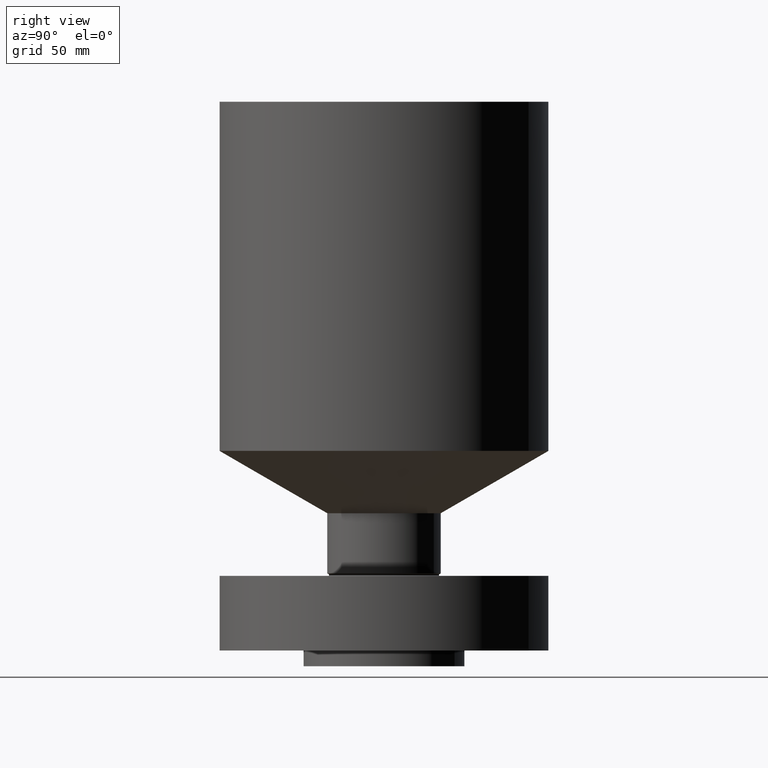
[diagram: clean part render]
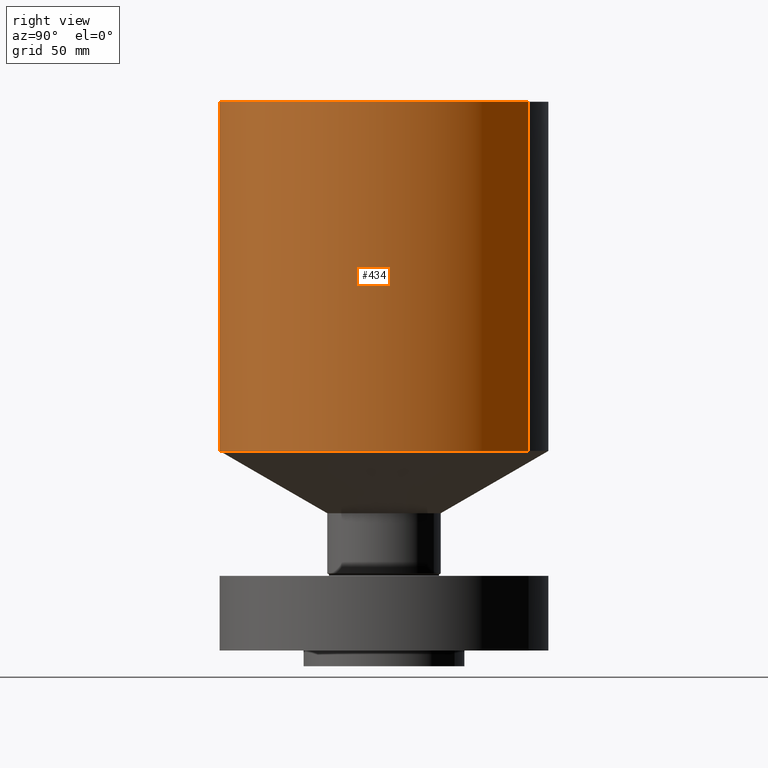
[diagram: same view with one face highlighted and labeled with its STEP entity id]
A machine part, right view. The second image highlights one B-rep face of the part: STEP entity #434.
In plain terms, the highlighted cylindrical surface (partial cylindrical patch) has radius 66.675 mm, axis along (0, 0, -1).
Its self-contained STEP definition (entity closure, byte-faithful):
#183=AXIS2_PLACEMENT_3D('Cylinder Axis2P3D',#180,#181,#182) ;
#380=AXIS2_PLACEMENT_3D('Circle Axis2P3D',#378,#379,$) ;
#418=AXIS2_PLACEMENT_3D('Circle Axis2P3D',#416,#417,$) ;
#180=CARTESIAN_POINT('Axis2P3D Location',(0.,0.,4.25000000002)) ;
#375=CARTESIAN_POINT('Vertex',(1.25849203884,2.30365422497,3.18304246302)) ;
#378=CARTESIAN_POINT('Axis2P3D Location',(0.,0.,3.18304246302)) ;
#382=CARTESIAN_POINT('Vertex',(-1.25849203884,-2.30365422497,3.18304246302)) ;
#409=CARTESIAN_POINT('Line Origine',(1.25849203884,2.30365422497,5.96652123153)) ;
#413=CARTESIAN_POINT('Vertex',(1.25849203884,2.30365422497,8.75000000004)) ;
#416=CARTESIAN_POINT('Axis2P3D Location',(0.,0.,8.75000000004)) ;
#420=CARTESIAN_POINT('Vertex',(-1.25849203884,-2.30365422497,8.75000000004)) ;
#423=CARTESIAN_POINT('Line Origine',(-1.25849203884,-2.30365422497,5.96652123153)) ;
#181=DIRECTION('Axis2P3D Direction',(0.,0.,-0.0393700787402)) ;
#182=DIRECTION('Axis2P3D XDirection',(-0.0188750212049,-0.0345504945626,0.)) ;
#379=DIRECTION('Axis2P3D Direction',(-0.,0.,0.0393700787402)) ;
#410=DIRECTION('Vector Direction',(0.,0.,-0.0393700787402)) ;
#417=DIRECTION('Axis2P3D Direction',(0.,0.,-0.0393700787402)) ;
#424=DIRECTION('Vector Direction',(0.,0.,-0.0393700787402)) ;
#411=VECTOR('Line Direction',#410,0.0393700787402) ;
#425=VECTOR('Line Direction',#424,0.0393700787402) ;
#429=ORIENTED_EDGE('',*,*,#384,.F.) ;
#430=ORIENTED_EDGE('',*,*,#415,.T.) ;
#431=ORIENTED_EDGE('',*,*,#422,.T.) ;
#432=ORIENTED_EDGE('',*,*,#427,.F.) ;
#434=ADVANCED_FACE('PartBody',(#433),#184,.T.) ;
#381=CIRCLE('generated circle',#380,2.62500000001) ;
#419=CIRCLE('generated circle',#418,2.62500000001) ;
#184=CYLINDRICAL_SURFACE('generated cylinder',#183,2.62500000001) ;
#384=EDGE_CURVE('',#376,#383,#381,.F.) ;
#415=EDGE_CURVE('',#376,#414,#412,.F.) ;
#422=EDGE_CURVE('',#414,#421,#419,.T.) ;
#427=EDGE_CURVE('',#383,#421,#426,.F.) ;
#428=EDGE_LOOP('',(#429,#430,#431,#432)) ;
#433=FACE_OUTER_BOUND('',#428,.T.) ;
#412=LINE('Line',#409,#411) ;
#426=LINE('Line',#423,#425) ;
#376=VERTEX_POINT('',#375) ;
#383=VERTEX_POINT('',#382) ;
#414=VERTEX_POINT('',#413) ;
#421=VERTEX_POINT('',#420) ;